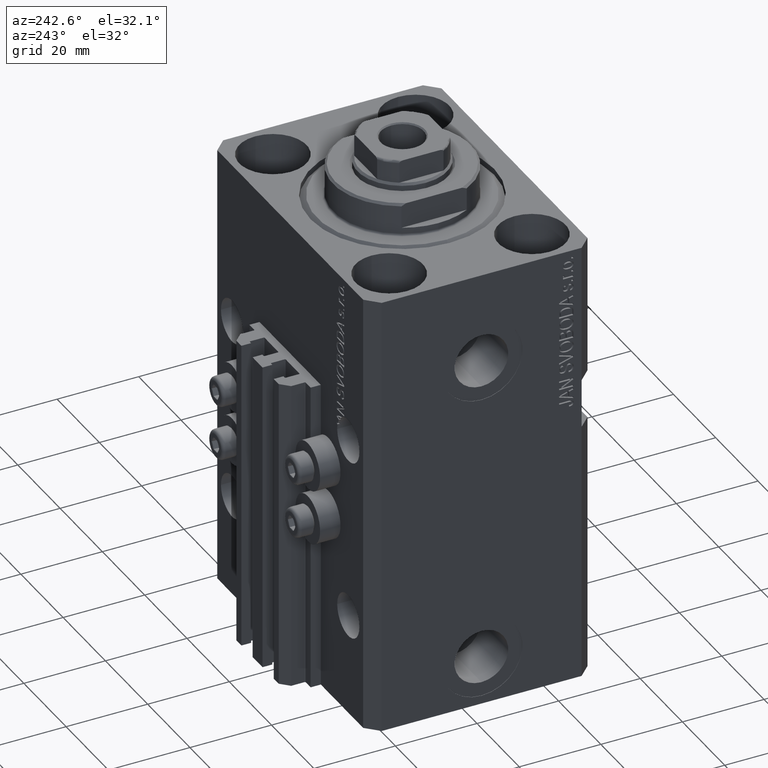
[diagram: clean part render]
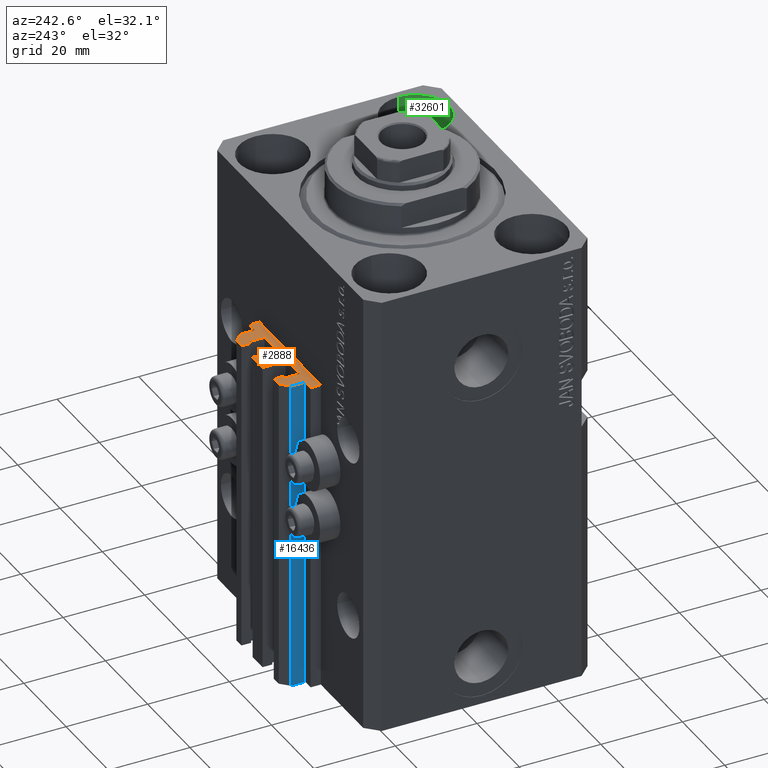
[diagram: same view with three faces highlighted in distinct colors, each labeled with its STEP entity id]
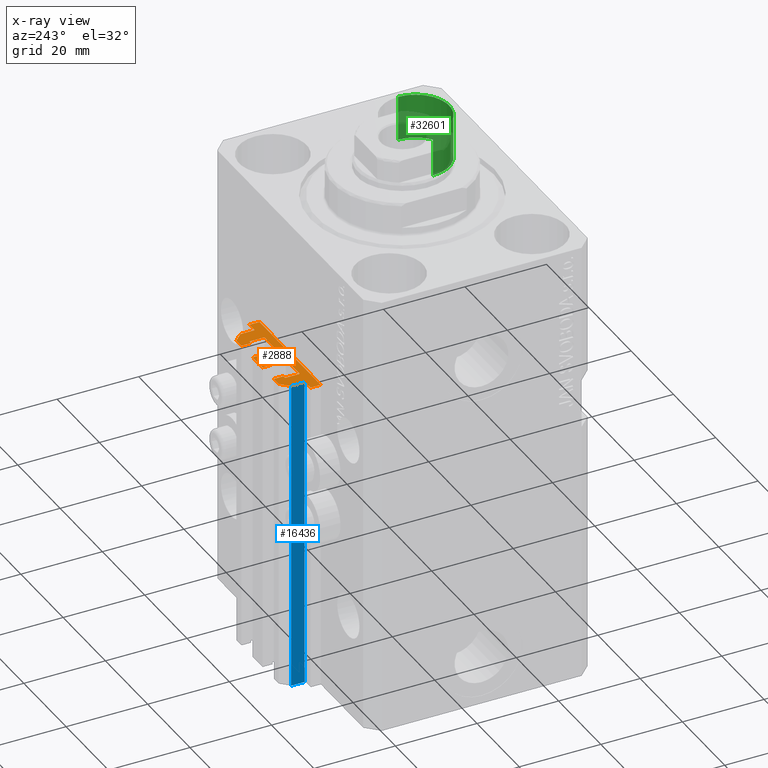
[diagram: x-ray of the same camera — body ghosted, the three highlighted faces saturated]
A machine part, auxiliary view with three faces highlighted in distinct colors.
The next image is the same camera in x-ray (body ghosted, the three faces saturated) — at least one of them is partly hidden behind the body in this view.
Their STEP definitions:

[orange] entity #2888 — the highlighted planar face has unit normal (0, 0, 1).
#12 = LINE ( 'NONE', #10324, #25574 ) ;
#101 = ORIENTED_EDGE ( 'NONE', *, *, #22304, .T. ) ;
#228 = EDGE_CURVE ( 'NONE', #8709, #36259, #12, .T. ) ;
#279 = CARTESIAN_POINT ( 'NONE',  ( 8.400000000000000355, 29.70000000000000284, -33.00000000000000000 ) ) ;
#280 = CARTESIAN_POINT ( 'NONE',  ( 9.999999999999998224, 35.50000000000001421, -33.00000000000000000 ) ) ;
#393 = CARTESIAN_POINT ( 'NONE',  ( -14.50000000000000000, 27.50000000000000355, -33.00000000000000000 ) ) ;
#508 = VERTEX_POINT ( 'NONE', #21997 ) ;
#739 = VERTEX_POINT ( 'NONE', #13076 ) ;
#938 = ORIENTED_EDGE ( 'NONE', *, *, #1450, .T. ) ;
#977 = DIRECTION ( 'NONE',  ( -1.000000000000000000, 0.000000000000000000, 0.000000000000000000 ) ) ;
#1066 = LINE ( 'NONE', #25990, #26103 ) ;
#1161 = EDGE_CURVE ( 'NONE', #16557, #39888, #35955, .T. ) ;
#1177 = ORIENTED_EDGE ( 'NONE', *, *, #7781, .T. ) ;
#1253 = ORIENTED_EDGE ( 'NONE', *, *, #40305, .T. ) ;
#1299 = CIRCLE ( 'NONE', #41783, 0.1999999999999994282 ) ;
#1450 = EDGE_CURVE ( 'NONE', #41213, #35494, #21302, .T. ) ;
#1770 = CARTESIAN_POINT ( 'NONE',  ( 1.800000000000000933, 32.90000000000001279, -33.00000000000000000 ) ) ;
#1857 = DIRECTION ( 'NONE',  ( 1.000000000000000000, 0.000000000000000000, 0.000000000000000000 ) ) ;
#2059 = EDGE_CURVE ( 'NONE', #37303, #508, #28299, .T. ) ;
#2466 = EDGE_CURVE ( 'NONE', #46208, #18946, #11691, .T. ) ;
#2599 = LINE ( 'NONE', #6433, #25536 ) ;
#2604 = CARTESIAN_POINT ( 'NONE',  ( 8.200000000000001066, 33.10000000000000853, -33.00000000000000000 ) ) ;
#2677 = VECTOR ( 'NONE', #29611, 1000.000000000000000 ) ;
#2697 = DIRECTION ( 'NONE',  ( -1.000000000000000000, 0.000000000000000000, 0.000000000000000000 ) ) ;
#2888 = ADVANCED_FACE ( 'NONE', ( #14300 ), #29126, .T. ) ;
#3248 = AXIS2_PLACEMENT_3D ( 'NONE', #5273, #16302, #41652 ) ;
#3456 = VECTOR ( 'NONE', #24707, 1000.000000000000000 ) ;
#3657 = CARTESIAN_POINT ( 'NONE',  ( 8.200000000000001066, 32.90000000000001990, -33.00000000000000000 ) ) ;
#3700 = CARTESIAN_POINT ( 'NONE',  ( 7.649999999999998579, 35.50000000000001421, -33.00000000000000000 ) ) ;
#3705 = ORIENTED_EDGE ( 'NONE', *, *, #17068, .T. ) ;
#3961 = CARTESIAN_POINT ( 'NONE',  ( 12.00000000000000000, 33.50000000000001421, -33.00000000000000000 ) ) ;
#4094 = EDGE_CURVE ( 'NONE', #33886, #47094, #40565, .T. ) ;
#4477 = LINE ( 'NONE', #41100, #30112 ) ;
#4586 = CARTESIAN_POINT ( 'NONE',  ( 8.199999999999999289, 29.50000000000000711, -33.00000000000000000 ) ) ;
#4783 = EDGE_CURVE ( 'NONE', #37490, #27968, #18210, .T. ) ;
#4866 = ORIENTED_EDGE ( 'NONE', *, *, #2466, .T. ) ;
#5242 = DIRECTION ( 'NONE',  ( 1.000000000000000000, 0.000000000000000000, 0.000000000000000000 ) ) ;
#5273 = CARTESIAN_POINT ( 'NONE',  ( -12.20000000000000107, 30.19999999999999218, -33.00000000000000000 ) ) ;
#5411 = ORIENTED_EDGE ( 'NONE', *, *, #228, .T. ) ;
#5434 = EDGE_CURVE ( 'NONE', #47224, #35494, #1299, .T. ) ;
#5615 = CARTESIAN_POINT ( 'NONE',  ( 1.800000000000000933, 29.50000000000000000, -33.00000000000000000 ) ) ;
#5640 = CIRCLE ( 'NONE', #37766, 0.2000000000000005107 ) ;
#5839 = DIRECTION ( 'NONE',  ( 1.000000000000000000, 0.000000000000000000, 0.000000000000000000 ) ) ;
#5890 = CARTESIAN_POINT ( 'NONE',  ( 12.00000000000000000, 33.50000000000001421, -33.00000000000000000 ) ) ;
#6009 = CARTESIAN_POINT ( 'NONE',  ( -7.650000000000000355, 35.50000000000000000, -33.00000000000000000 ) ) ;
#6198 = VERTEX_POINT ( 'NONE', #8902 ) ;
#6289 = LINE ( 'NONE', #35496, #39120 ) ;
#6358 = ORIENTED_EDGE ( 'NONE', *, *, #44465, .T. ) ;
#6433 = CARTESIAN_POINT ( 'NONE',  ( 7.649999999999998579, 33.10000000000001563, -33.00000000000000000 ) ) ;
#6576 = EDGE_LOOP ( 'NONE', ( #27527, #13474, #5411, #34087, #10333, #1253, #40072, #29193, #23048, #6358, #42936, #1177, #9942, #27133, #22839, #29672, #16737, #20657, #25720, #20649, #16841, #10718, #38791, #938, #10724, #28759, #39739, #18314, #29911, #101, #6952, #46000, #4866, #25652, #23364, #3705 ) ) ;
#6802 = VERTEX_POINT ( 'NONE', #16516 ) ;
#6891 = CARTESIAN_POINT ( 'NONE',  ( -14.50000000000000000, 29.99999999999999289, -33.00000000000000000 ) ) ;
#6922 = DIRECTION ( 'NONE',  ( 0.000000000000000000, 0.000000000000000000, 1.000000000000000000 ) ) ;
#6952 = ORIENTED_EDGE ( 'NONE', *, *, #1161, .T. ) ;
#7214 = LINE ( 'NONE', #21823, #32971 ) ;
#7312 = DIRECTION ( 'NONE',  ( 0.000000000000000000, 0.000000000000000000, 1.000000000000000000 ) ) ;
#7413 = CARTESIAN_POINT ( 'NONE',  ( -10.00000000000000000, 35.50000000000000000, -33.00000000000000000 ) ) ;
#7423 = LINE ( 'NONE', #11002, #28290 ) ;
#7494 = DIRECTION ( 'NONE',  ( 0.000000000000000000, 0.000000000000000000, 1.000000000000000000 ) ) ;
#7584 = LINE ( 'NONE', #21729, #19981 ) ;
#7719 = DIRECTION ( 'NONE',  ( -1.000000000000000000, -1.084202172485504828E-15, 0.000000000000000000 ) ) ;
#7726 = CIRCLE ( 'NONE', #20710, 0.2000000000000016209 ) ;
#7781 = EDGE_CURVE ( 'NONE', #19918, #12629, #35234, .T. ) ;
#8041 = CARTESIAN_POINT ( 'NONE',  ( -12.20000000000000107, 29.99999999999998934, -33.00000000000000000 ) ) ;
#8055 = VERTEX_POINT ( 'NONE', #40937 ) ;
#8240 = VECTOR ( 'NONE', #7719, 1000.000000000000000 ) ;
#8709 = VERTEX_POINT ( 'NONE', #28522 ) ;
#8885 = LINE ( 'NONE', #6009, #19291 ) ;
#8902 = CARTESIAN_POINT ( 'NONE',  ( 2.349999999999999645, 35.50000000000001421, -33.00000000000000000 ) ) ;
#9090 = CARTESIAN_POINT ( 'NONE',  ( -2.350000000000003642, 35.50000000000001421, -33.00000000000000000 ) ) ;
#9099 = CARTESIAN_POINT ( 'NONE',  ( -1.599999999999997868, 32.90000000000001279, -33.00000000000000000 ) ) ;
#9589 = DIRECTION ( 'NONE',  ( -1.000000000000000000, 0.000000000000000000, 0.000000000000000000 ) ) ;
#9942 = ORIENTED_EDGE ( 'NONE', *, *, #38405, .F. ) ;
#10080 = CARTESIAN_POINT ( 'NONE',  ( 8.400000000000000355, 32.90000000000001990, -33.00000000000000000 ) ) ;
#10099 = VECTOR ( 'NONE', #32036, 1000.000000000000000 ) ;
#10324 = CARTESIAN_POINT ( 'NONE',  ( 14.49999999999999645, 27.50000000000000355, -33.00000000000000000 ) ) ;
#10333 = ORIENTED_EDGE ( 'NONE', *, *, #17730, .F. ) ;
#10476 = LINE ( 'NONE', #6891, #10099 ) ;
#10540 = CARTESIAN_POINT ( 'NONE',  ( -8.199999999999997513, 29.50000000000000355, -33.00000000000000000 ) ) ;
#10718 = ORIENTED_EDGE ( 'NONE', *, *, #44727, .T. ) ;
#10724 = ORIENTED_EDGE ( 'NONE', *, *, #5434, .F. ) ;
#11002 = CARTESIAN_POINT ( 'NONE',  ( -8.199999999999997513, 33.09999999999998721, -33.00000000000000000 ) ) ;
#11156 = DIRECTION ( 'NONE',  ( -0.7071067811865474617, 0.7071067811865474617, 0.000000000000000000 ) ) ;
#11691 = LINE ( 'NONE', #44013, #45512 ) ;
#11703 = CARTESIAN_POINT ( 'NONE',  ( 12.20000000000000107, 30.00000000000002487, -33.00000000000000000 ) ) ;
#11825 = CARTESIAN_POINT ( 'NONE',  ( 1.800000000000000933, 33.10000000000001563, -33.00000000000000000 ) ) ;
#12435 = CIRCLE ( 'NONE', #3248, 0.2000000000000005107 ) ;
#12464 = CARTESIAN_POINT ( 'NONE',  ( 7.649999999999998579, 35.50000000000001421, -33.00000000000000000 ) ) ;
#12594 = VERTEX_POINT ( 'NONE', #22785 ) ;
#12629 = VERTEX_POINT ( 'NONE', #279 ) ;
#12806 = AXIS2_PLACEMENT_3D ( 'NONE', #36979, #7312, #21916 ) ;
#13076 = CARTESIAN_POINT ( 'NONE',  ( 9.999999999999998224, 35.50000000000001421, -33.00000000000000000 ) ) ;
#13122 = EDGE_CURVE ( 'NONE', #37303, #37347, #45666, .T. ) ;
#13252 = CARTESIAN_POINT ( 'NONE',  ( 1.800000000000000933, 29.69999999999999929, -33.00000000000000000 ) ) ;
#13372 = DIRECTION ( 'NONE',  ( 1.000000000000000000, -1.261617073437673828E-14, 0.000000000000000000 ) ) ;
#13427 = EDGE_CURVE ( 'NONE', #6802, #30803, #26142, .T. ) ;
#13474 = ORIENTED_EDGE ( 'NONE', *, *, #46433, .T. ) ;
#13621 = LINE ( 'NONE', #21290, #33138 ) ;
#13950 = LINE ( 'NONE', #39790, #41230 ) ;
#14300 = FACE_OUTER_BOUND ( 'NONE', #6576, .T. ) ;
#14302 = DIRECTION ( 'NONE',  ( -1.000000000000000000, 0.000000000000000000, 0.000000000000000000 ) ) ;
#14575 = DIRECTION ( 'NONE',  ( -6.776263578034378061E-17, -1.000000000000000000, 0.000000000000000000 ) ) ;
#14583 = DIRECTION ( 'NONE',  ( -0.7071067811865460184, -0.7071067811865490160, 0.000000000000000000 ) ) ;
#14747 = AXIS2_PLACEMENT_3D ( 'NONE', #21300, #6922, #21534 ) ;
#15108 = DIRECTION ( 'NONE',  ( -5.256737805990334897E-16, 1.000000000000000000, 0.000000000000000000 ) ) ;
#15720 = CARTESIAN_POINT ( 'NONE',  ( -1.600000000000000755, 29.69999999999999929, -33.00000000000000000 ) ) ;
#15841 = EDGE_CURVE ( 'NONE', #21778, #8055, #21765, .T. ) ;
#16302 = DIRECTION ( 'NONE',  ( 0.000000000000000000, 0.000000000000000000, 1.000000000000000000 ) ) ;
#16516 = CARTESIAN_POINT ( 'NONE',  ( 8.199999999999999289, 29.50000000000000711, -33.00000000000000000 ) ) ;
#16557 = VERTEX_POINT ( 'NONE', #37366 ) ;
#16608 = CARTESIAN_POINT ( 'NONE',  ( -1.800000000000000933, 32.90000000000001279, -33.00000000000000000 ) ) ;
#16737 = ORIENTED_EDGE ( 'NONE', *, *, #18429, .F. ) ;
#16841 = ORIENTED_EDGE ( 'NONE', *, *, #4783, .T. ) ;
#17068 = EDGE_CURVE ( 'NONE', #26118, #46785, #22410, .T. ) ;
#17539 = DIRECTION ( 'NONE',  ( -1.084202172485505223E-15, 1.000000000000000000, 0.000000000000000000 ) ) ;
#17730 = EDGE_CURVE ( 'NONE', #18436, #36578, #36639, .T. ) ;
#18115 = LINE ( 'NONE', #3961, #45175 ) ;
#18210 = LINE ( 'NONE', #21557, #24214 ) ;
#18314 = ORIENTED_EDGE ( 'NONE', *, *, #2059, .T. ) ;
#18364 = CIRCLE ( 'NONE', #45837, 0.2000000000000033418 ) ;
#18429 = EDGE_CURVE ( 'NONE', #21778, #20782, #18364, .T. ) ;
#18436 = VERTEX_POINT ( 'NONE', #46764 ) ;
#18549 = CARTESIAN_POINT ( 'NONE',  ( -14.50000000000000000, 29.99999999999999289, -33.00000000000000000 ) ) ;
#18655 = VERTEX_POINT ( 'NONE', #27331 ) ;
#18946 = VERTEX_POINT ( 'NONE', #20990 ) ;
#18961 = LINE ( 'NONE', #280, #41412 ) ;
#19098 = DIRECTION ( 'NONE',  ( 1.000000000000000000, 1.261617073437673039E-14, 0.000000000000000000 ) ) ;
#19291 = VECTOR ( 'NONE', #9589, 1000.000000000000000 ) ;
#19427 = CIRCLE ( 'NONE', #39306, 0.1999999999999970690 ) ;
#19632 = CARTESIAN_POINT ( 'NONE',  ( -8.199999999999997513, 32.89999999999999147, -33.00000000000000000 ) ) ;
#19918 = VERTEX_POINT ( 'NONE', #39471 ) ;
#19981 = VECTOR ( 'NONE', #14302, 1000.000000000000000 ) ;
#20649 = ORIENTED_EDGE ( 'NONE', *, *, #26258, .F. ) ;
#20657 = ORIENTED_EDGE ( 'NONE', *, *, #15841, .T. ) ;
#20690 = DIRECTION ( 'NONE',  ( 0.000000000000000000, 0.000000000000000000, 1.000000000000000000 ) ) ;
#20710 = AXIS2_PLACEMENT_3D ( 'NONE', #13252, #20690, #5839 ) ;
#20782 = VERTEX_POINT ( 'NONE', #26416 ) ;
#20990 = CARTESIAN_POINT ( 'NONE',  ( -12.00000000000000000, 33.49999999999998579, -33.00000000000000000 ) ) ;
#21040 = VECTOR ( 'NONE', #14575, 1000.000000000000000 ) ;
#21290 = CARTESIAN_POINT ( 'NONE',  ( 2.349999999999999645, 33.10000000000000853, -33.00000000000000000 ) ) ;
#21300 = CARTESIAN_POINT ( 'NONE',  ( 8.199999999999999289, 29.70000000000000284, -33.00000000000000000 ) ) ;
#21302 = LINE ( 'NONE', #43292, #21040 ) ;
#21444 = DIRECTION ( 'NONE',  ( 0.000000000000000000, -1.000000000000000000, 0.000000000000000000 ) ) ;
#21534 = DIRECTION ( 'NONE',  ( 1.000000000000000000, 0.000000000000000000, 0.000000000000000000 ) ) ;
#21557 = CARTESIAN_POINT ( 'NONE',  ( -2.350000000000003642, 35.50000000000001421, -33.00000000000000000 ) ) ;
#21727 = CARTESIAN_POINT ( 'NONE',  ( 12.20000000000000107, 30.20000000000002061, -33.00000000000000000 ) ) ;
#21729 = CARTESIAN_POINT ( 'NONE',  ( 14.49999999999999645, 30.00000000000002487, -33.00000000000000000 ) ) ;
#21765 = LINE ( 'NONE', #24639, #34306 ) ;
#21778 = VERTEX_POINT ( 'NONE', #11825 ) ;
#21823 = CARTESIAN_POINT ( 'NONE',  ( 1.600000000000000533, 29.69999999999999929, -33.00000000000000000 ) ) ;
#21916 = DIRECTION ( 'NONE',  ( 1.000000000000000000, 0.000000000000000000, 0.000000000000000000 ) ) ;
#21960 = EDGE_CURVE ( 'NONE', #41213, #44209, #39730, .T. ) ;
#21997 = CARTESIAN_POINT ( 'NONE',  ( -8.400000000000000355, 32.89999999999999858, -33.00000000000000000 ) ) ;
#22008 = EDGE_CURVE ( 'NONE', #18946, #12594, #13950, .T. ) ;
#22103 = DIRECTION ( 'NONE',  ( 1.000000000000000000, 0.000000000000000000, 0.000000000000000000 ) ) ;
#22254 = CARTESIAN_POINT ( 'NONE',  ( 7.649999999999998579, 33.10000000000001563, -33.00000000000000000 ) ) ;
#22304 = EDGE_CURVE ( 'NONE', #40167, #16557, #7423, .T. ) ;
#22410 = LINE ( 'NONE', #8041, #26718 ) ;
#22553 = CARTESIAN_POINT ( 'NONE',  ( 14.49999999999999645, 30.00000000000002487, -33.00000000000000000 ) ) ;
#22643 = DIRECTION ( 'NONE',  ( 1.000000000000000000, 0.000000000000000000, 0.000000000000000000 ) ) ;
#22785 = CARTESIAN_POINT ( 'NONE',  ( -12.00000000000000000, 30.19999999999999218, -33.00000000000000000 ) ) ;
#22839 = ORIENTED_EDGE ( 'NONE', *, *, #24371, .F. ) ;
#23048 = ORIENTED_EDGE ( 'NONE', *, *, #4094, .T. ) ;
#23273 = DIRECTION ( 'NONE',  ( 0.000000000000000000, 0.000000000000000000, 1.000000000000000000 ) ) ;
#23364 = ORIENTED_EDGE ( 'NONE', *, *, #41159, .F. ) ;
#23448 = DIRECTION ( 'NONE',  ( 0.000000000000000000, 0.000000000000000000, 1.000000000000000000 ) ) ;
#24214 = VECTOR ( 'NONE', #25615, 1000.000000000000000 ) ;
#24371 = EDGE_CURVE ( 'NONE', #18655, #30803, #7726, .T. ) ;
#24639 = CARTESIAN_POINT ( 'NONE',  ( 1.800000000000000933, 33.10000000000001563, -33.00000000000000000 ) ) ;
#24707 = DIRECTION ( 'NONE',  ( 0.000000000000000000, 1.000000000000000000, 0.000000000000000000 ) ) ;
#24815 = CARTESIAN_POINT ( 'NONE',  ( -12.20000000000000107, 29.99999999999998934, -33.00000000000000000 ) ) ;
#25088 = VERTEX_POINT ( 'NONE', #2604 ) ;
#25337 = DIRECTION ( 'NONE',  ( 1.000000000000000000, -1.261617073437681085E-14, 0.000000000000000000 ) ) ;
#25531 = DIRECTION ( 'NONE',  ( -1.000000000000000000, 1.508455196501571429E-15, 0.000000000000000000 ) ) ;
#25536 = VECTOR ( 'NONE', #13372, 1000.000000000000000 ) ;
#25574 = VECTOR ( 'NONE', #42868, 1000.000000000000000 ) ;
#25615 = DIRECTION ( 'NONE',  ( 1.807003620809174632E-16, -1.000000000000000000, 0.000000000000000000 ) ) ;
#25652 = ORIENTED_EDGE ( 'NONE', *, *, #22008, .T. ) ;
#25662 = EDGE_CURVE ( 'NONE', #18655, #20782, #7214, .T. ) ;
#25720 = ORIENTED_EDGE ( 'NONE', *, *, #30151, .T. ) ;
#25905 = DIRECTION ( 'NONE',  ( 0.000000000000000000, -1.000000000000000000, 0.000000000000000000 ) ) ;
#25990 = CARTESIAN_POINT ( 'NONE',  ( -2.350000000000003642, 35.50000000000001421, -33.00000000000000000 ) ) ;
#26103 = VECTOR ( 'NONE', #22643, 1000.000000000000000 ) ;
#26118 = VERTEX_POINT ( 'NONE', #24815 ) ;
#26135 = EDGE_CURVE ( 'NONE', #27937, #739, #18115, .T. ) ;
#26142 = LINE ( 'NONE', #4586, #8240 ) ;
#26258 = EDGE_CURVE ( 'NONE', #37490, #6198, #1066, .T. ) ;
#26416 = CARTESIAN_POINT ( 'NONE',  ( 1.600000000000000533, 32.90000000000001279, -33.00000000000000000 ) ) ;
#26471 = EDGE_CURVE ( 'NONE', #47224, #37347, #6289, .T. ) ;
#26718 = VECTOR ( 'NONE', #25531, 1000.000000000000000 ) ;
#27133 = ORIENTED_EDGE ( 'NONE', *, *, #13427, .T. ) ;
#27331 = CARTESIAN_POINT ( 'NONE',  ( 1.599999999999999645, 29.69999999999999929, -33.00000000000000000 ) ) ;
#27527 = ORIENTED_EDGE ( 'NONE', *, *, #27758, .T. ) ;
#27758 = EDGE_CURVE ( 'NONE', #46785, #40918, #10476, .T. ) ;
#27937 = VERTEX_POINT ( 'NONE', #5890 ) ;
#27968 = VERTEX_POINT ( 'NONE', #31262 ) ;
#28222 = DIRECTION ( 'NONE',  ( 0.000000000000000000, 1.000000000000000000, 0.000000000000000000 ) ) ;
#28290 = VECTOR ( 'NONE', #47391, 1000.000000000000000 ) ;
#28299 = LINE ( 'NONE', #35491, #31768 ) ;
#28499 = CARTESIAN_POINT ( 'NONE',  ( -1.800000000000000933, 33.10000000000001563, -33.00000000000000000 ) ) ;
#28522 = CARTESIAN_POINT ( 'NONE',  ( 14.49999999999999645, 27.50000000000000355, -33.00000000000000000 ) ) ;
#28759 = ORIENTED_EDGE ( 'NONE', *, *, #26471, .T. ) ;
#29126 = PLANE ( 'NONE',  #29511 ) ;
#29193 = ORIENTED_EDGE ( 'NONE', *, *, #36297, .T. ) ;
#29511 = AXIS2_PLACEMENT_3D ( 'NONE', #21727, #37262, #33432 ) ;
#29611 = DIRECTION ( 'NONE',  ( 1.000000000000000000, 0.000000000000000000, 0.000000000000000000 ) ) ;
#29672 = ORIENTED_EDGE ( 'NONE', *, *, #25662, .T. ) ;
#29911 = ORIENTED_EDGE ( 'NONE', *, *, #44382, .F. ) ;
#30112 = VECTOR ( 'NONE', #19098, 1000.000000000000000 ) ;
#30151 = EDGE_CURVE ( 'NONE', #8055, #6198, #13621, .T. ) ;
#30803 = VERTEX_POINT ( 'NONE', #5615 ) ;
#31151 = CARTESIAN_POINT ( 'NONE',  ( -8.399999999999996803, 29.69999999999999929, -33.00000000000000000 ) ) ;
#31199 = DIRECTION ( 'NONE',  ( 0.000000000000000000, 0.000000000000000000, 1.000000000000000000 ) ) ;
#31262 = CARTESIAN_POINT ( 'NONE',  ( -2.350000000000003197, 33.10000000000000853, -33.00000000000000000 ) ) ;
#31768 = VECTOR ( 'NONE', #17539, 1000.000000000000000 ) ;
#31800 = CARTESIAN_POINT ( 'NONE',  ( -1.800000000000000933, 29.50000000000000355, -33.00000000000000000 ) ) ;
#32036 = DIRECTION ( 'NONE',  ( 0.000000000000000000, -1.000000000000000000, 0.000000000000000000 ) ) ;
#32366 = CARTESIAN_POINT ( 'NONE',  ( -7.650000000000000355, 33.09999999999999432, -33.00000000000000000 ) ) ;
#32963 = LINE ( 'NONE', #393, #2677 ) ;
#32971 = VECTOR ( 'NONE', #36650, 1000.000000000000000 ) ;
#33138 = VECTOR ( 'NONE', #28222, 1000.000000000000000 ) ;
#33296 = CARTESIAN_POINT ( 'NONE',  ( -8.199999999999997513, 33.09999999999998721, -33.00000000000000000 ) ) ;
#33432 = DIRECTION ( 'NONE',  ( 1.000000000000000000, 0.000000000000000000, -0.000000000000000000 ) ) ;
#33886 = VERTEX_POINT ( 'NONE', #12464 ) ;
#34087 = ORIENTED_EDGE ( 'NONE', *, *, #35434, .T. ) ;
#34272 = DIRECTION ( 'NONE',  ( 1.000000000000000000, 0.000000000000000000, 0.000000000000000000 ) ) ;
#34306 = VECTOR ( 'NONE', #25337, 1000.000000000000000 ) ;
#35234 = LINE ( 'NONE', #10080, #43183 ) ;
#35283 = DIRECTION ( 'NONE',  ( 1.000000000000000000, 0.000000000000000000, 0.000000000000000000 ) ) ;
#35379 = CIRCLE ( 'NONE', #14747, 0.1999999999999987899 ) ;
#35434 = EDGE_CURVE ( 'NONE', #36259, #36578, #7584, .T. ) ;
#35491 = CARTESIAN_POINT ( 'NONE',  ( -8.399999999999996803, 29.69999999999999929, -33.00000000000000000 ) ) ;
#35494 = VERTEX_POINT ( 'NONE', #15720 ) ;
#35496 = CARTESIAN_POINT ( 'NONE',  ( -1.800000000000000933, 29.50000000000000355, -33.00000000000000000 ) ) ;
#35710 = DIRECTION ( 'NONE',  ( -5.421010862427496532E-16, -1.000000000000000000, 0.000000000000000000 ) ) ;
#35955 = LINE ( 'NONE', #32366, #3456 ) ;
#36259 = VERTEX_POINT ( 'NONE', #22553 ) ;
#36297 = EDGE_CURVE ( 'NONE', #739, #33886, #18961, .T. ) ;
#36578 = VERTEX_POINT ( 'NONE', #11703 ) ;
#36639 = CIRCLE ( 'NONE', #42737, 0.1999999999999987899 ) ;
#36650 = DIRECTION ( 'NONE',  ( 0.000000000000000000, 1.000000000000000000, 0.000000000000000000 ) ) ;
#36661 = CARTESIAN_POINT ( 'NONE',  ( 12.00000000000000178, 30.20000000000002061, -33.00000000000000000 ) ) ;
#36979 = CARTESIAN_POINT ( 'NONE',  ( -8.199999999999997513, 29.69999999999999929, -33.00000000000000000 ) ) ;
#37262 = DIRECTION ( 'NONE',  ( 0.000000000000000000, 0.000000000000000000, 1.000000000000000000 ) ) ;
#37276 = EDGE_CURVE ( 'NONE', #39888, #46208, #8885, .T. ) ;
#37303 = VERTEX_POINT ( 'NONE', #31151 ) ;
#37347 = VERTEX_POINT ( 'NONE', #10540 ) ;
#37366 = CARTESIAN_POINT ( 'NONE',  ( -7.650000000000000355, 33.09999999999999432, -33.00000000000000000 ) ) ;
#37458 = AXIS2_PLACEMENT_3D ( 'NONE', #16608, #31199, #45780 ) ;
#37490 = VERTEX_POINT ( 'NONE', #9090 ) ;
#37766 = AXIS2_PLACEMENT_3D ( 'NONE', #19632, #23448, #5242 ) ;
#38405 = EDGE_CURVE ( 'NONE', #6802, #12629, #35379, .T. ) ;
#38476 = VECTOR ( 'NONE', #15108, 1000.000000000000000 ) ;
#38714 = DIRECTION ( 'NONE',  ( 0.000000000000000000, 0.000000000000000000, 1.000000000000000000 ) ) ;
#38791 = ORIENTED_EDGE ( 'NONE', *, *, #21960, .F. ) ;
#39120 = VECTOR ( 'NONE', #2697, 1000.000000000000000 ) ;
#39306 = AXIS2_PLACEMENT_3D ( 'NONE', #3657, #7494, #22103 ) ;
#39471 = CARTESIAN_POINT ( 'NONE',  ( 8.399999999999998579, 32.90000000000001990, -33.00000000000000000 ) ) ;
#39730 = CIRCLE ( 'NONE', #37458, 0.2000000000000031197 ) ;
#39739 = ORIENTED_EDGE ( 'NONE', *, *, #13122, .F. ) ;
#39790 = CARTESIAN_POINT ( 'NONE',  ( -12.00000000000000000, 33.49999999999998579, -33.00000000000000000 ) ) ;
#39888 = VERTEX_POINT ( 'NONE', #40315 ) ;
#40072 = ORIENTED_EDGE ( 'NONE', *, *, #26135, .T. ) ;
#40167 = VERTEX_POINT ( 'NONE', #33296 ) ;
#40305 = EDGE_CURVE ( 'NONE', #18436, #27937, #40481, .T. ) ;
#40315 = CARTESIAN_POINT ( 'NONE',  ( -7.650000000000000355, 35.50000000000000000, -33.00000000000000000 ) ) ;
#40481 = LINE ( 'NONE', #36661, #38476 ) ;
#40565 = LINE ( 'NONE', #3700, #46380 ) ;
#40918 = VERTEX_POINT ( 'NONE', #44882 ) ;
#40937 = CARTESIAN_POINT ( 'NONE',  ( 2.349999999999999645, 33.10000000000000853, -33.00000000000000000 ) ) ;
#41100 = CARTESIAN_POINT ( 'NONE',  ( -2.350000000000003197, 33.10000000000000853, -33.00000000000000000 ) ) ;
#41159 = EDGE_CURVE ( 'NONE', #26118, #12594, #12435, .T. ) ;
#41213 = VERTEX_POINT ( 'NONE', #9099 ) ;
#41230 = VECTOR ( 'NONE', #25905, 1000.000000000000000 ) ;
#41412 = VECTOR ( 'NONE', #977, 1000.000000000000000 ) ;
#41652 = DIRECTION ( 'NONE',  ( 1.000000000000000000, 0.000000000000000000, 0.000000000000000000 ) ) ;
#41783 = AXIS2_PLACEMENT_3D ( 'NONE', #45256, #23273, #34272 ) ;
#42450 = DIRECTION ( 'NONE',  ( 0.000000000000000000, 0.000000000000000000, 1.000000000000000000 ) ) ;
#42737 = AXIS2_PLACEMENT_3D ( 'NONE', #45410, #38714, #1857 ) ;
#42868 = DIRECTION ( 'NONE',  ( 0.000000000000000000, 1.000000000000000000, 0.000000000000000000 ) ) ;
#42936 = ORIENTED_EDGE ( 'NONE', *, *, #44141, .F. ) ;
#43183 = VECTOR ( 'NONE', #35710, 1000.000000000000000 ) ;
#43292 = CARTESIAN_POINT ( 'NONE',  ( -1.600000000000000533, 32.90000000000001279, -33.00000000000000000 ) ) ;
#44013 = CARTESIAN_POINT ( 'NONE',  ( -10.00000000000000000, 35.50000000000000000, -33.00000000000000000 ) ) ;
#44141 = EDGE_CURVE ( 'NONE', #19918, #25088, #19427, .T. ) ;
#44209 = VERTEX_POINT ( 'NONE', #28499 ) ;
#44382 = EDGE_CURVE ( 'NONE', #40167, #508, #5640, .T. ) ;
#44465 = EDGE_CURVE ( 'NONE', #47094, #25088, #2599, .T. ) ;
#44727 = EDGE_CURVE ( 'NONE', #27968, #44209, #4477, .T. ) ;
#44882 = CARTESIAN_POINT ( 'NONE',  ( -14.50000000000000000, 27.50000000000000355, -33.00000000000000000 ) ) ;
#45175 = VECTOR ( 'NONE', #11156, 1000.000000000000114 ) ;
#45256 = CARTESIAN_POINT ( 'NONE',  ( -1.800000000000000933, 29.69999999999999929, -33.00000000000000000 ) ) ;
#45410 = CARTESIAN_POINT ( 'NONE',  ( 12.20000000000000107, 30.20000000000002061, -33.00000000000000000 ) ) ;
#45512 = VECTOR ( 'NONE', #14583, 1000.000000000000227 ) ;
#45666 = CIRCLE ( 'NONE', #12806, 0.1999999999999987899 ) ;
#45780 = DIRECTION ( 'NONE',  ( 1.000000000000000000, 0.000000000000000000, 0.000000000000000000 ) ) ;
#45837 = AXIS2_PLACEMENT_3D ( 'NONE', #1770, #42450, #35283 ) ;
#46000 = ORIENTED_EDGE ( 'NONE', *, *, #37276, .T. ) ;
#46208 = VERTEX_POINT ( 'NONE', #7413 ) ;
#46380 = VECTOR ( 'NONE', #21444, 1000.000000000000000 ) ;
#46433 = EDGE_CURVE ( 'NONE', #40918, #8709, #32963, .T. ) ;
#46764 = CARTESIAN_POINT ( 'NONE',  ( 12.00000000000000178, 30.20000000000002061, -33.00000000000000000 ) ) ;
#46785 = VERTEX_POINT ( 'NONE', #18549 ) ;
#47094 = VERTEX_POINT ( 'NONE', #22254 ) ;
#47224 = VERTEX_POINT ( 'NONE', #31800 ) ;
#47391 = DIRECTION ( 'NONE',  ( 1.000000000000000000, 1.261617073437685503E-14, 0.000000000000000000 ) ) ;

[blue] entity #16436 — the highlighted planar face has unit normal (-1, 0, 0).
#1659 = LINE ( 'NONE', #16756, #32363 ) ;
#1949 = VERTEX_POINT ( 'NONE', #40776 ) ;
#2722 = CARTESIAN_POINT ( 'NONE',  ( -12.00000000000000000, 30.19999999999999218, -110.0000000000000000 ) ) ;
#5264 = EDGE_CURVE ( 'NONE', #16315, #12594, #35520, .T. ) ;
#6979 = DIRECTION ( 'NONE',  ( 0.000000000000000000, 0.000000000000000000, 1.000000000000000000 ) ) ;
#7457 = PLANE ( 'NONE',  #47324 ) ;
#8033 = CARTESIAN_POINT ( 'NONE',  ( -12.00000000000000000, 30.19999999999999218, -110.0000000000000000 ) ) ;
#8831 = ORIENTED_EDGE ( 'NONE', *, *, #31947, .F. ) ;
#10515 = LINE ( 'NONE', #46432, #15623 ) ;
#12594 = VERTEX_POINT ( 'NONE', #22785 ) ;
#13543 = VECTOR ( 'NONE', #43152, 1000.000000000000000 ) ;
#13950 = LINE ( 'NONE', #39790, #41230 ) ;
#15623 = VECTOR ( 'NONE', #21073, 1000.000000000000000 ) ;
#16315 = VERTEX_POINT ( 'NONE', #8033 ) ;
#16436 = ADVANCED_FACE ( 'NONE', ( #31465 ), #7457, .T. ) ;
#16756 = CARTESIAN_POINT ( 'NONE',  ( -12.00000000000000000, 33.49999999999998579, -110.0000000000000000 ) ) ;
#17150 = ORIENTED_EDGE ( 'NONE', *, *, #22008, .F. ) ;
#18946 = VERTEX_POINT ( 'NONE', #20990 ) ;
#20990 = CARTESIAN_POINT ( 'NONE',  ( -12.00000000000000000, 33.49999999999998579, -33.00000000000000000 ) ) ;
#21073 = DIRECTION ( 'NONE',  ( 0.000000000000000000, 0.000000000000000000, 1.000000000000000000 ) ) ;
#22008 = EDGE_CURVE ( 'NONE', #18946, #12594, #13950, .T. ) ;
#22785 = CARTESIAN_POINT ( 'NONE',  ( -12.00000000000000000, 30.19999999999999218, -33.00000000000000000 ) ) ;
#25170 = CARTESIAN_POINT ( 'NONE',  ( -12.00000000000000000, 33.49999999999998579, -110.0000000000000000 ) ) ;
#25905 = DIRECTION ( 'NONE',  ( 0.000000000000000000, -1.000000000000000000, 0.000000000000000000 ) ) ;
#27279 = DIRECTION ( 'NONE',  ( 0.000000000000000000, -1.000000000000000000, 0.000000000000000000 ) ) ;
#28884 = EDGE_LOOP ( 'NONE', ( #17150, #8831, #37345, #36887 ) ) ;
#30037 = EDGE_CURVE ( 'NONE', #1949, #16315, #1659, .T. ) ;
#31465 = FACE_OUTER_BOUND ( 'NONE', #28884, .T. ) ;
#31947 = EDGE_CURVE ( 'NONE', #1949, #18946, #10515, .T. ) ;
#32363 = VECTOR ( 'NONE', #27279, 1000.000000000000000 ) ;
#35520 = LINE ( 'NONE', #2722, #13543 ) ;
#36887 = ORIENTED_EDGE ( 'NONE', *, *, #5264, .T. ) ;
#37345 = ORIENTED_EDGE ( 'NONE', *, *, #30037, .T. ) ;
#39790 = CARTESIAN_POINT ( 'NONE',  ( -12.00000000000000000, 33.49999999999998579, -33.00000000000000000 ) ) ;
#40776 = CARTESIAN_POINT ( 'NONE',  ( -12.00000000000000000, 33.49999999999998579, -110.0000000000000000 ) ) ;
#41230 = VECTOR ( 'NONE', #25905, 1000.000000000000000 ) ;
#43152 = DIRECTION ( 'NONE',  ( 0.000000000000000000, 0.000000000000000000, 1.000000000000000000 ) ) ;
#43582 = DIRECTION ( 'NONE',  ( -1.000000000000000000, 0.000000000000000000, 0.000000000000000000 ) ) ;
#46432 = CARTESIAN_POINT ( 'NONE',  ( -12.00000000000000000, 33.49999999999998579, -110.0000000000000000 ) ) ;
#47324 = AXIS2_PLACEMENT_3D ( 'NONE', #25170, #43582, #6979 ) ;

[green] entity #32601 — the highlighted cylindrical surface (partial cylindrical patch) has radius 8.25 mm, axis along (0, 0, 1).
#1938 = CARTESIAN_POINT ( 'NONE',  ( 35.75000000000000711, -17.50000000000000000, -11.00000000000000000 ) ) ;
#4067 = VECTOR ( 'NONE', #17850, 1000.000000000000000 ) ;
#4112 = EDGE_CURVE ( 'NONE', #34386, #4643, #10432, .T. ) ;
#4643 = VERTEX_POINT ( 'NONE', #1938 ) ;
#4828 = CARTESIAN_POINT ( 'NONE',  ( 19.25000000000000000, -17.50000000000000000, 0.000000000000000000 ) ) ;
#5372 = ORIENTED_EDGE ( 'NONE', *, *, #36596, .T. ) ;
#5919 = ORIENTED_EDGE ( 'NONE', *, *, #10801, .T. ) ;
#7143 = DIRECTION ( 'NONE',  ( 0.000000000000000000, 0.000000000000000000, 1.000000000000000000 ) ) ;
#7397 = AXIS2_PLACEMENT_3D ( 'NONE', #39927, #7143, #21759 ) ;
#8470 = DIRECTION ( 'NONE',  ( 1.000000000000000000, 0.000000000000000000, 0.000000000000000000 ) ) ;
#10432 = CIRCLE ( 'NONE', #25747, 8.250000000000000000 ) ;
#10801 = EDGE_CURVE ( 'NONE', #13451, #42894, #11962, .T. ) ;
#10999 = CARTESIAN_POINT ( 'NONE',  ( 19.25000000000000000, -17.50000000000000000, -11.00000000000000000 ) ) ;
#11962 = CIRCLE ( 'NONE', #7397, 8.250000000000000000 ) ;
#12106 = FACE_OUTER_BOUND ( 'NONE', #33606, .T. ) ;
#12575 = DIRECTION ( 'NONE',  ( 1.000000000000000000, 0.000000000000000000, 0.000000000000000000 ) ) ;
#13451 = VERTEX_POINT ( 'NONE', #4828 ) ;
#17850 = DIRECTION ( 'NONE',  ( -0.000000000000000000, -0.000000000000000000, 1.000000000000000000 ) ) ;
#18554 = CARTESIAN_POINT ( 'NONE',  ( 35.75000000000000711, -17.50000000000000000, -11.00000000000000000 ) ) ;
#21759 = DIRECTION ( 'NONE',  ( 1.000000000000000000, 0.000000000000000000, 0.000000000000000000 ) ) ;
#21912 = CARTESIAN_POINT ( 'NONE',  ( 35.75000000000000711, -17.50000000000000000, 0.000000000000000000 ) ) ;
#24850 = CARTESIAN_POINT ( 'NONE',  ( 19.25000000000000000, -17.50000000000000000, -11.00000000000000000 ) ) ;
#25747 = AXIS2_PLACEMENT_3D ( 'NONE', #37449, #41488, #8470 ) ;
#30806 = AXIS2_PLACEMENT_3D ( 'NONE', #44416, #45119, #12575 ) ;
#32601 = ADVANCED_FACE ( 'NONE', ( #12106 ), #37959, .F. ) ;
#32794 = LINE ( 'NONE', #10999, #33019 ) ;
#33019 = VECTOR ( 'NONE', #47388, 1000.000000000000000 ) ;
#33606 = EDGE_LOOP ( 'NONE', ( #38957, #5372, #5919, #34511 ) ) ;
#34386 = VERTEX_POINT ( 'NONE', #24850 ) ;
#34511 = ORIENTED_EDGE ( 'NONE', *, *, #42943, .F. ) ;
#36596 = EDGE_CURVE ( 'NONE', #34386, #13451, #32794, .T. ) ;
#36743 = LINE ( 'NONE', #18554, #4067 ) ;
#37449 = CARTESIAN_POINT ( 'NONE',  ( 27.50000000000000355, -17.50000000000000000, -11.00000000000000000 ) ) ;
#37959 = CYLINDRICAL_SURFACE ( 'NONE', #30806, 8.250000000000000000 ) ;
#38957 = ORIENTED_EDGE ( 'NONE', *, *, #4112, .F. ) ;
#39927 = CARTESIAN_POINT ( 'NONE',  ( 27.50000000000000355, -17.50000000000000000, 0.000000000000000000 ) ) ;
#41488 = DIRECTION ( 'NONE',  ( 0.000000000000000000, 0.000000000000000000, 1.000000000000000000 ) ) ;
#42894 = VERTEX_POINT ( 'NONE', #21912 ) ;
#42943 = EDGE_CURVE ( 'NONE', #4643, #42894, #36743, .T. ) ;
#44416 = CARTESIAN_POINT ( 'NONE',  ( 27.50000000000000355, -17.50000000000000000, -11.00000000000000000 ) ) ;
#45119 = DIRECTION ( 'NONE',  ( -0.000000000000000000, -0.000000000000000000, 1.000000000000000000 ) ) ;
#47388 = DIRECTION ( 'NONE',  ( -0.000000000000000000, -0.000000000000000000, 1.000000000000000000 ) ) ;